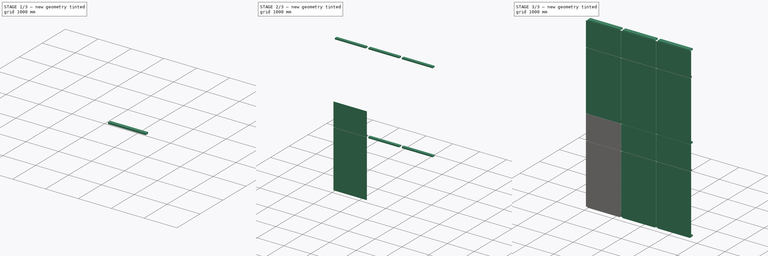
[diagram: build sequence overview — one tinted view per stage of 3, left to right]
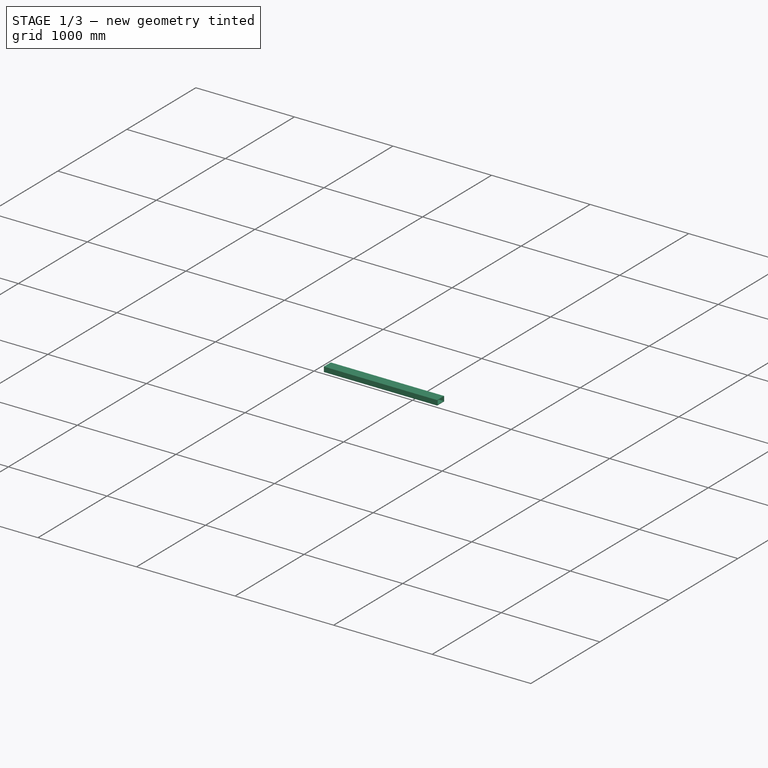
[diagram: stage 1 of 3 — iso view after this stage's code; geometry added in this stage tinted green]
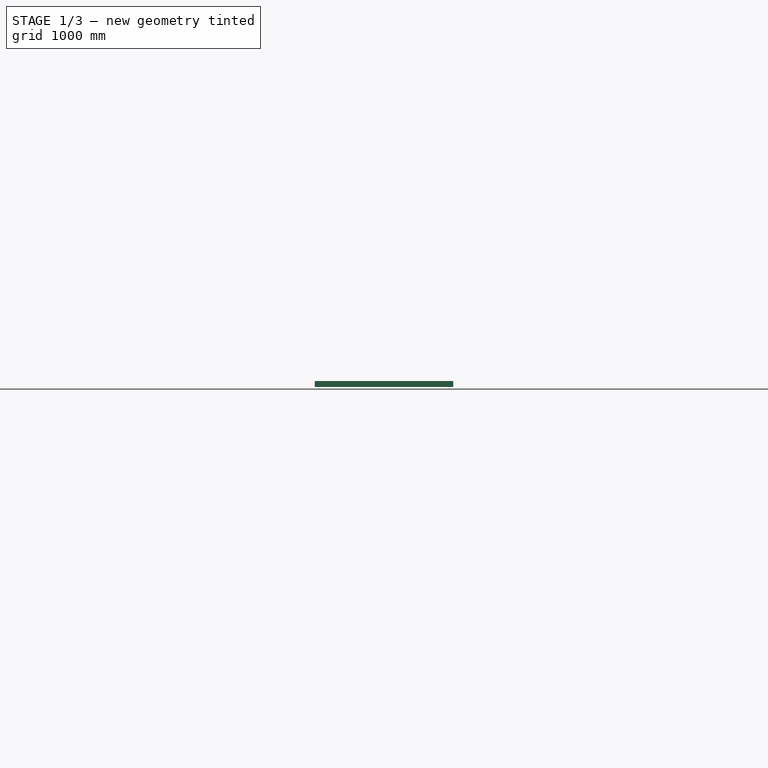
[diagram: stage 1 of 3 — front view after this stage's code; geometry added in this stage tinted green]
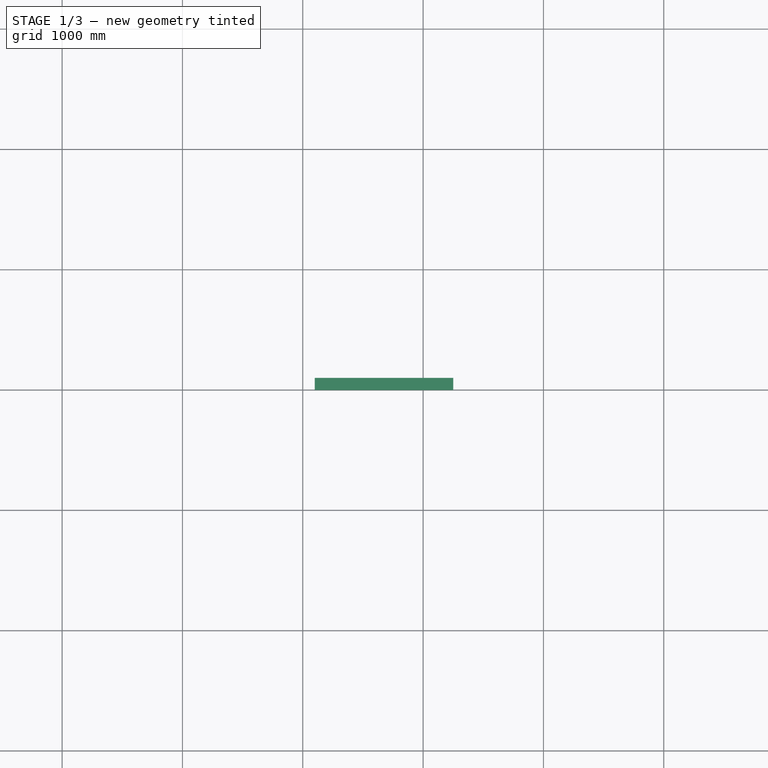
[diagram: stage 1 of 3 — top view after this stage's code; geometry added in this stage tinted green]
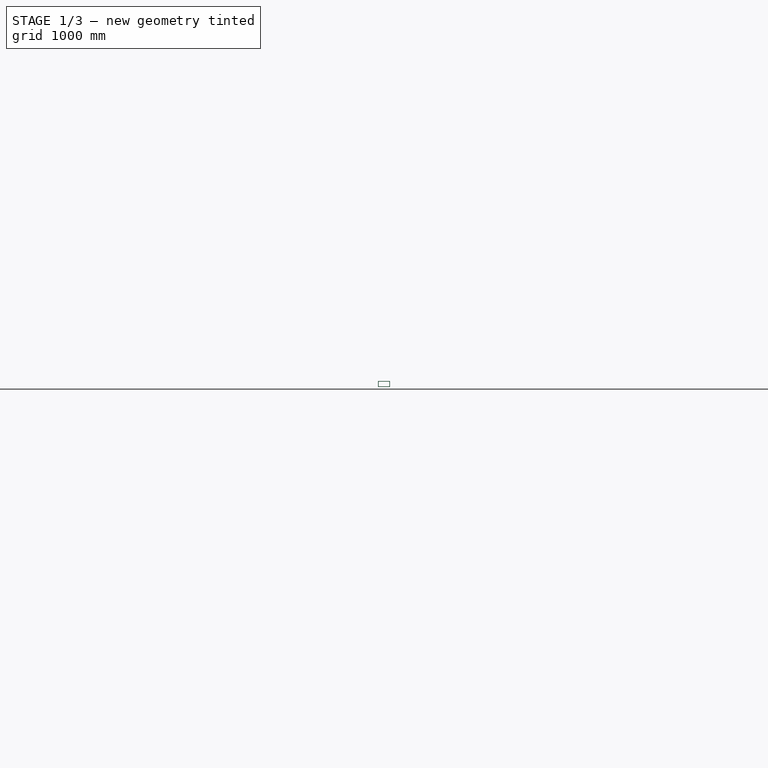
[diagram: stage 1 of 3 — right view after this stage's code; geometry added in this stage tinted green]
FCSTD DOCUMENT  (FreeCAD 0.16R6704 (Git))
Label: Editable_structural_glazing
License: CreativeCommons Attribution
LicenseURL: http://creativecommons.org/licenses/by/4.0/
objects: Sketcher::SketchObject×4, Part::Extrusion×4, Part::FeaturePython×4, Spreadsheet::Sheet×2, App::DocumentObjectGroup×1
note: 12 computed .brp shape members not serialized (recipe doc carries the construction recipe); baked Part::Feature solids carry a one-line shape summary decoded from their .brp

FEATURE [Sketcher::SketchObject] Sketch209  label="Esboço perfis verticais"
  expr: Constraints[34] = Spreadsheet.e_perfis_verticais
  expr: Constraints[33] = Spreadsheet.P_perfis_verticais
  expr: Constraints[32] = Spreadsheet.L_perfis_verticais
  sketch-geometry (12):
    g0: LineSegment StartX=0 StartY=0 StartZ=0 EndX=100 EndY=0 EndZ=0
    g1: LineSegment StartX=100 StartY=0 StartZ=0 EndX=100 EndY=150 EndZ=0
    g2: LineSegment StartX=100 StartY=150 StartZ=0 EndX=0 EndY=150 EndZ=0
    g3: LineSegment StartX=0 StartY=150 StartZ=0 EndX=0 EndY=0 EndZ=0
    g4: LineSegment StartX=5 StartY=145 StartZ=0 EndX=95 EndY=145 EndZ=0
    g5: LineSegment StartX=95 StartY=145 StartZ=0 EndX=95 EndY=5 EndZ=0
    g6: LineSegment StartX=95 StartY=5 StartZ=0 EndX=5 EndY=5 EndZ=0
    g7: LineSegment StartX=5 StartY=5 StartZ=0 EndX=5 EndY=145 EndZ=0
    g8: LineSegment [constr] StartX=0 StartY=66.143 StartZ=0 EndX=5 EndY=66.143 EndZ=0
    g9: LineSegment [constr] StartX=1.57103 StartY=150 StartZ=0 EndX=1.57103 EndY=145 EndZ=0
    g10: LineSegment [constr] StartX=95 StartY=61.8499 StartZ=0 EndX=100 EndY=61.8499 EndZ=0
    g11: LineSegment [constr] StartX=33.117 StartY=5 StartZ=0 EndX=33.117 EndY=0 EndZ=0
  constraints (35):
    c: Coincident(g0,g1)
    c: Coincident(g1,g2)
    c: Coincident(g2,g3)
    c: Coincident(g3,g0)
    c: Horizontal(g0)
    c: Horizontal(g2)
    c: Vertical(g1)
    c: Vertical(g3)
    c: Coincident(g0,g-1)  'Constraint10'
    c: Coincident(g4,g5)
    c: Coincident(g5,g6)
    c: Coincident(g6,g7)
    c: Coincident(g7,g4)
    c: Horizontal(g4)
    c: Horizontal(g6)
    c: Vertical(g5)
    c: Vertical(g7)
    c: PointOnObject(g8,g3)  'Constraint19'
    c: PointOnObject(g8,g7)
    c: PointOnObject(g9,g2)
    c: PointOnObject(g9,g4)
    c: PointOnObject(g10,g5)
    c: PointOnObject(g10,g1)
    c: PointOnObject(g11,g6)
    c: PointOnObject(g11,g0)
    c: Angle(g11) = -1.5708
    c: Angle(g8) = 0
    c: Angle(g9) = -1.5708
    c: Angle(g10) = 0
    c: Equal(g8,g9)
    c: Equal(g9,g10)
    c: Equal(g10,g11)
    c: DistanceX(g-1,g0) = 100
    c: DistanceY(g-1,g2) = 150
    c: DistanceX(g2,g4) = 5
FEATURE [Part::Extrusion] Extrude_Sketch209  label="Perfis verticais "
  Base = -> Sketch209
  Dir = (0,0,6050)
  Solid = true
  expr: Dir.z = Spreadsheet.H_vao * Spreadsheet.n_pavimentos + Spreadsheet.H_perfis_horizontais
FEATURE [Part::FeaturePython] Array  label="Vertical frames"  # Draft array (typed FeaturePython)
  Angle = 360
  ArrayType = 0
  Axis = (1,0,0)
  Base = -> Extrude_Sketch209
  Center = (0,0,0)
  Fuse = false
  IntervalAxis = (0,0,0)
  IntervalX = (1250,0,0)
  IntervalY = (0,1,0)
  IntervalZ = (0,0,0)
  NumberPolar = 1
  NumberX = 4
  NumberY = 1
  NumberZ = 1
  expr: NumberX = Spreadsheet.n_modulos + 1
  expr: IntervalX.x = Spreadsheet.d_entre_eixos
FEATURE [Spreadsheet::Sheet] Spreadsheet  label="Inputs"
  cells = A1=Structural glazing settings:; D1=Alias:; B2=Inputs (mm):; C2=Outputs (do not edit):; A3=General modulation:; A4=1. Frame height (between axles):; B4(H_vao)=3000; D4=Alias: H_vao; A5=2. Iintermediate profile height (axis):; B5(H_perfil_intermediario)=2150; D5=Alias: H_perfil_intermediario; A6=3. Wheelbase of the modules:; B6(d_entre_eixos)=1250; D6=Alias: d_entre_eixos; A7=4. Modules number:; B7(n_modulos)=3; D7=Alias: n_modulos; A8=Result opening width (do not edit):; C8==B6 * B7; A9=5. Number of floors (vertical repetitions):; B9(n_pavimentos)=2; D9=Alias: n_pavimentos; A11=Vertical frames:; A12=Vertical frames width:; B12(L_perfis_verticais)=100; D12=Alias: L_perfis_verticais; A13=Vertical frames depth:; B13(P_perfis_verticais)=150; D13=Alias: P_perfis_verticais; A14=Vertical frames thickness:; B14(e_perfis_verticais)=5; D14=Alias: e_perfis_verticais; A16=Horizontal frames:; A17=Horizontal frames heitht:; B17(H_perfis_horizontais)=50; D17=Alias: H_perfis_horizontais; A18=Horizontal frames depth:; B18(P_perfis_horizontais)=150; D18=Alias: P_perfis_horizontais; A19=Horizontal frames thickness:; B19(e_perfis_horizontais)=5; D19=Atalho: e_perfis_horizontais; A20=Horizontal frames position:; B20(posicionamento_perfis_horizontais)=0; D20=Alias: posicionamento_perfis_horizontais; A22=Secundary horizontal frames:; A23=Secundary horizontal frames: heitht; B23(H_perfis_secundarios)=50; D23=Alias: H_perfis_secundarios; A24=Secundary horizontal frames depth; B24(P_perfis_secundarios)=100; D24=Alias: P_perfis_secundarios; A25=Secundary horizontal frames thickness:; B25(e_perfis_secundarios)=5; D25=Alias: e_perfis_secundarios; A26=Secundary horizontal frames position:; B26(posicionamento_perfis_secundarios)=0; D26=Alias: posicionamento_perfis_secundarios; A28=Glasses:; A29=Glass thickness; B29(e_vidros)=10; D29=Alias: e_vidros; A30=Limits (to frame axes):; B30(limites_vidros)=5; D30=Alias: limites_vidros; A31=Alignment to the external face:; B31(posicionamento_vidros)=0; D31=Alias: posicionamento_vidros
FEATURE [Sketcher::SketchObject] Sketch  label="Esboço perfis secundarios"
  ExternalGeometry = -> [Array]
  Placement = pos=(100,0,0) rot=(0.57735,0.57735,0.57735;2.0944rad)
  Support = -> Array [Face2]
  expr: Constraints[38] = Spreadsheet.e_perfis_secundarios
  expr: Constraints[13] = Spreadsheet.H_perfil_intermediario
  expr: Constraints[11] = Spreadsheet.P_perfis_secundarios
  expr: Constraints[12] = Spreadsheet.H_perfis_secundarios
  sketch-geometry (13):
    g0: LineSegment [constr] StartX=-1134.88 StartY=2150 StartZ=0 EndX=971.493 EndY=2150 EndZ=0
    g1: LineSegment StartX=0 StartY=2175 StartZ=0 EndX=100 EndY=2175 EndZ=0
    g2: LineSegment StartX=100 StartY=2175 StartZ=0 EndX=100 EndY=2125 EndZ=0
    g3: LineSegment StartX=100 StartY=2125 StartZ=0 EndX=0 EndY=2125 EndZ=0
    g4: LineSegment StartX=0 StartY=2125 StartZ=0 EndX=0 EndY=2175 EndZ=0
    g5: LineSegment StartX=5 StartY=2170 StartZ=0 EndX=95 EndY=2170 EndZ=0
    g6: LineSegment StartX=95 StartY=2170 StartZ=0 EndX=95 EndY=2130 EndZ=0
    g7: LineSegment StartX=95 StartY=2130 StartZ=0 EndX=5 EndY=2130 EndZ=0
    g8: LineSegment StartX=5 StartY=2130 StartZ=0 EndX=5 EndY=2170 EndZ=0
    g9: LineSegment [constr] StartX=5 StartY=2130 StartZ=0 EndX=0 EndY=2130 EndZ=0
    g10: LineSegment [constr] StartX=5 StartY=2170 StartZ=0 EndX=5 EndY=2175 EndZ=0
    g11: LineSegment [constr] StartX=95 StartY=2170 StartZ=0 EndX=100 EndY=2170 EndZ=0
    g12: LineSegment [constr] StartX=95 StartY=2130 StartZ=0 EndX=95 EndY=2125 EndZ=0
  constraints (39):
    c: Horizontal(g0)
    c: Coincident(g1,g2)
    c: Coincident(g2,g3)
    c: Coincident(g3,g4)
    c: Coincident(g4,g1)
    c: Horizontal(g1)
    c: Horizontal(g3)
    c: Vertical(g2)
    c: Vertical(g4)
    c: Symmetric(g1,g3,g0)
    c: PointOnObject(g3,g-4)
    c: DistanceX(g1,g1) = 100
    c: DistanceY(g3,g1) = 50
    c: DistanceY(g-1,g0) = 2150
    c: Coincident(g5,g6)
    c: Coincident(g6,g7)
    c: Coincident(g7,g8)
    c: Coincident(g8,g5)
    c: Horizontal(g5)
    c: Horizontal(g7)
    c: Vertical(g6)
    c: Vertical(g8)
    c: PointOnObject(g9,g-4)
    c: Coincident(g10,g5)
    c: PointOnObject(g10,g1)
    c: Coincident(g11,g5)
    c: PointOnObject(g11,g2)
    c: Coincident(g12,g6)
    c: PointOnObject(g12,g3)
    c: Angle(g9) = 3.14159
    c: Angle(g10) = 1.5708
    c: Angle(g11) = 0
    c: Angle(g12) = -1.5708
    c: Equal(g9,g10)
    c: Equal(g10,g11)
    c: Equal(g11,g12)
    c: PointOnObject(g9,g8)
    c: Coincident(g9,g7)
    c: DistanceX(g6,g1) = 5
FEATURE [Part::Extrusion] Extrude_Sketch  label="Perfis secundarios"
  Base = -> Sketch
  Dir = (1150,0,0)
  Solid = true
  expr: Dir.x = Spreadsheet.d_entre_eixos - Spreadsheet.L_perfis_verticais
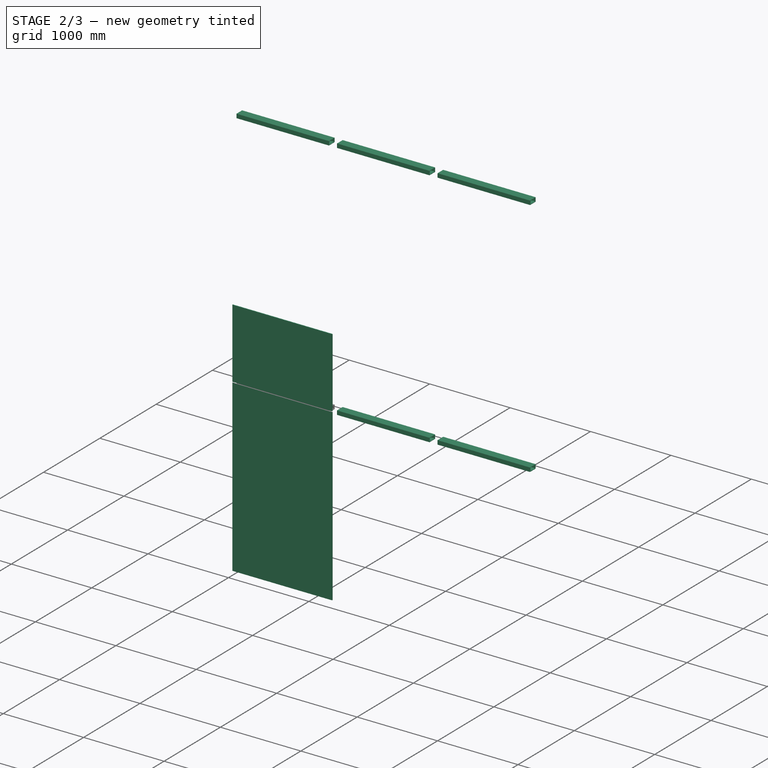
[diagram: stage 2 of 3 — iso view after this stage's code; geometry added in this stage tinted green]
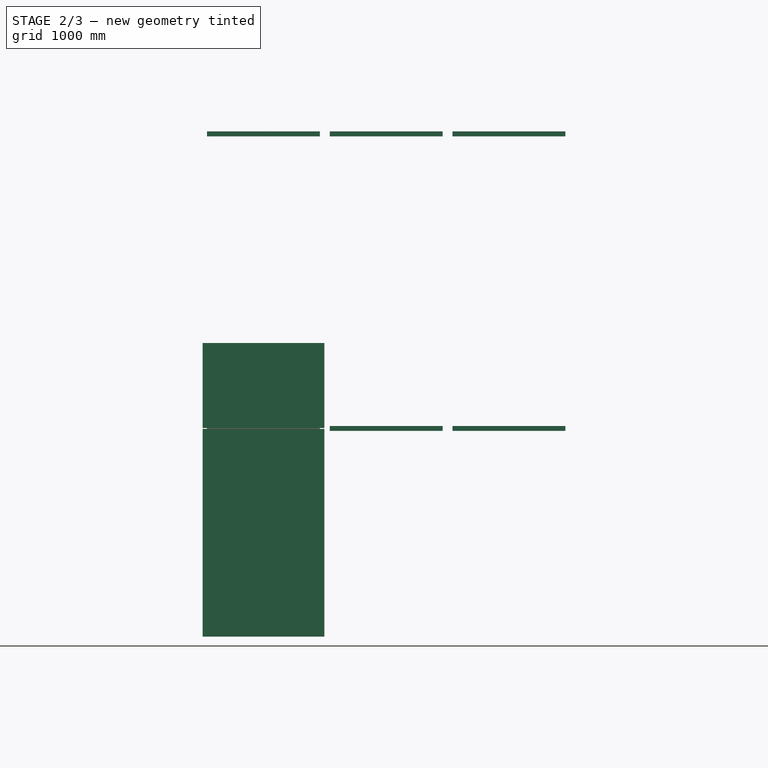
[diagram: stage 2 of 3 — front view after this stage's code; geometry added in this stage tinted green]
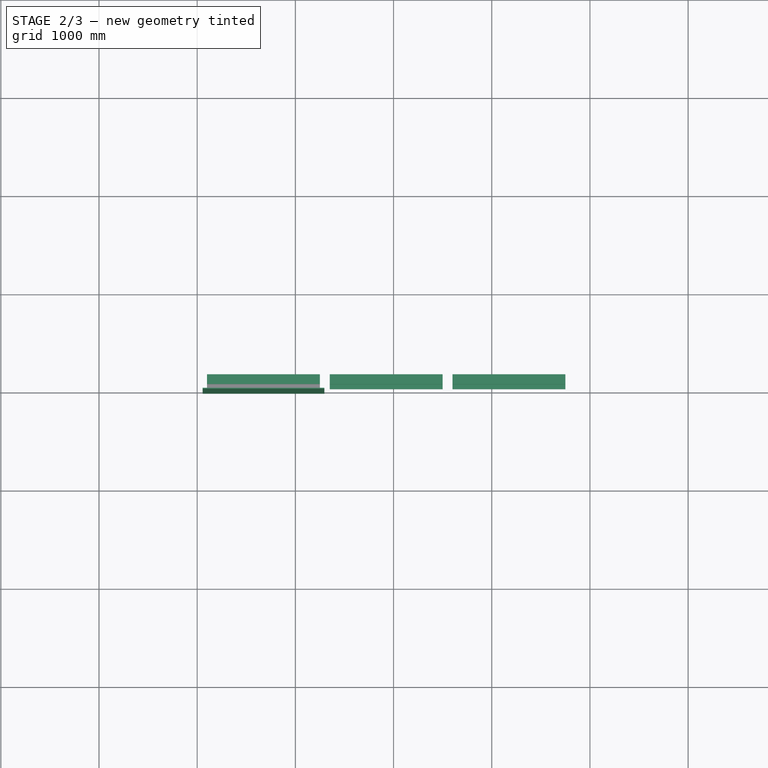
[diagram: stage 2 of 3 — top view after this stage's code; geometry added in this stage tinted green]
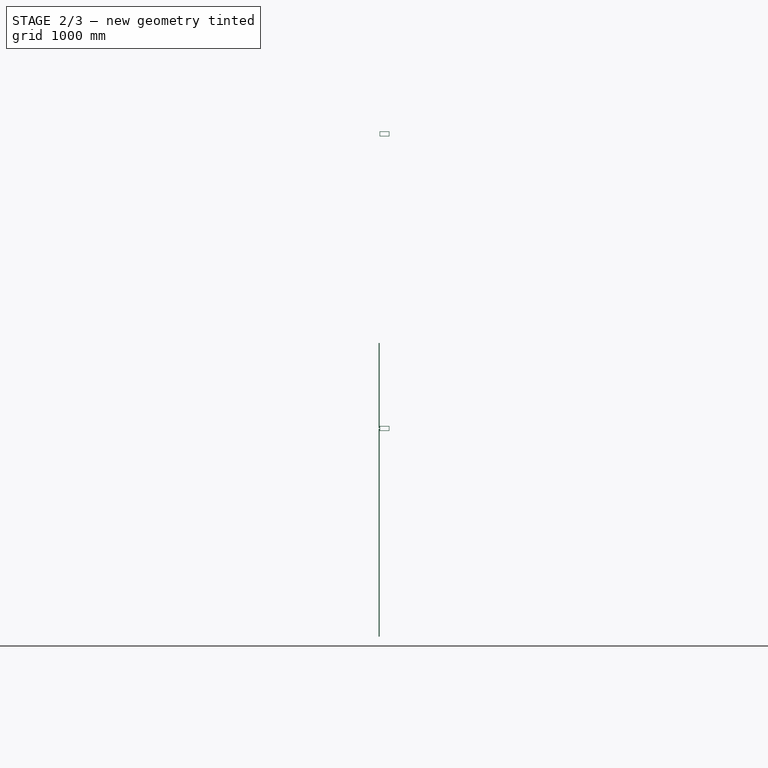
[diagram: stage 2 of 3 — right view after this stage's code; geometry added in this stage tinted green]
FEATURE [Sketcher::SketchObject] Sketch211  label="Esboço vidros"
  ExternalGeometry = -> [Extrude_Sketch209]
  Placement = pos=(0,0,0) rot=(1,0,0;1.5708rad)
  Support = -> Extrude_Sketch209 [Face1]
  expr: Constraints.Distancia_vidros = Spreadsheet.limites_vidros
  expr: Constraints[25] = Spreadsheet.d_entre_eixos
  expr: Constraints[28] = Spreadsheet.H_perfis_horizontais / 2
  expr: Constraints.Constraint32 = Spreadsheet.limites_vidros
  expr: Constraints.Altura_vidros = Spreadsheet.H_vao
  expr: Constraints[29] = Spreadsheet.limites_vidros
  expr: Constraints[20] = Spreadsheet.limites_vidros
  expr: Constraints.Constraint28 = Spreadsheet.limites_vidros
  expr: Constraints.Constraint26 = Spreadsheet.H_perfil_intermediario
  expr: Constraints.Distancia_vidros_02 = Spreadsheet.limites_vidros
  sketch-geometry (13):
    g0: LineSegment StartX=55 StartY=3020 StartZ=0 EndX=1295 EndY=3020 EndZ=0
    g1: LineSegment StartX=1295 StartY=3020 StartZ=0 EndX=1295 EndY=2155 EndZ=0
    g2: LineSegment StartX=1295 StartY=2155 StartZ=0 EndX=55 EndY=2155 EndZ=0
    g3: LineSegment StartX=55 StartY=2155 StartZ=0 EndX=55 EndY=3020 EndZ=0
    g4: LineSegment StartX=55 StartY=2145 StartZ=0 EndX=1295 EndY=2145 EndZ=0
    g5: LineSegment StartX=1295 StartY=2145 StartZ=0 EndX=1295 EndY=30 EndZ=0
    g6: LineSegment StartX=1295 StartY=30 StartZ=0 EndX=55 EndY=30 EndZ=0
    g7: LineSegment StartX=55 StartY=30 StartZ=0 EndX=55 EndY=2145 EndZ=0
    g8: LineSegment [constr] StartX=50 StartY=3205.53 StartZ=0 EndX=50 EndY=-776.153 EndZ=0
    g9: LineSegment [constr] StartX=-1184.11 StartY=2150 StartZ=0 EndX=8140.16 EndY=2150 EndZ=0
    g10: LineSegment [constr] StartX=1300 StartY=3244 StartZ=0 EndX=1300 EndY=-528.743 EndZ=0
    g11: LineSegment [constr] StartX=-1031.45 StartY=3025 StartZ=0 EndX=2636.03 EndY=3025 EndZ=0
    g12: LineSegment [constr] StartX=-1137.88 StartY=25 StartZ=0 EndX=1656 EndY=25 EndZ=0
  constraints (34):
    c: Coincident(g0,g1)
    c: Coincident(g1,g2)
    c: Coincident(g2,g3)
    c: Coincident(g3,g0)
    c: Horizontal(g0)
    c: Horizontal(g2)
    c: Vertical(g1)
    c: Vertical(g3)
    c: Coincident(g4,g5)
    c: Coincident(g5,g6)
    c: Coincident(g6,g7)
    c: Coincident(g7,g4)
    c: Horizontal(g4)
    c: Horizontal(g6)
    c: Vertical(g5)
    c: Vertical(g7)
    c: DistanceX(g4,g2) = 0
    c: DistanceX(g1,g4) = 0
    c: Vertical(g8)
    c: Symmetric(g-5,g-5,g8)
    c: DistanceX(g8,g0) = 5
    c: Horizontal(g9)
    c: Vertical(g10)  'Constraint27'
    c: DistanceX(g0,g10) = 5  'Constraint28'
    c: DistanceY(g9) = 2150  'Constraint26'
    c: DistanceX(g8,g10) = 1250
    c: Horizontal(g11)
    c: Horizontal(g12)
    c: DistanceY(g-1,g12) = 25
    c: DistanceY(g12,g6) = 5
    c: DistanceY(g12,g11) = 3000  'Altura_vidros'
    c: DistanceY(g0,g11) = 5  'Constraint32'
    c: DistanceY(g9,g2) = 5  'Distancia_vidros'
    c: DistanceY(g4,g9) = 5  'Distancia_vidros_02'
FEATURE [Part::Extrusion] Extrude_Sketch211  label="Vidros "
  Base = -> Sketch211
  Dir = (0,-10,0)
  Solid = true
  expr: Dir.y = -Spreadsheet.e_vidros
FEATURE [Part::FeaturePython] Array003  label="Secundary frames"  # Draft array (typed FeaturePython)
  Angle = 360
  ArrayType = 0
  Axis = (0,0,1)
  Base = -> Extrude_Sketch
  Center = (0,0,0)
  Fuse = false
  IntervalAxis = (0,0,0)
  IntervalX = (1250,0,0)
  IntervalY = (0,1,0)
  IntervalZ = (0,0,3000)
  NumberPolar = 1
  NumberX = 3
  NumberY = 1
  NumberZ = 2
  expr: Placement.Base.y = Spreadsheet.posicionamento_perfis_secundarios
  expr: NumberZ = Spreadsheet.n_pavimentos
  expr: IntervalZ.z = Spreadsheet.H_vao
  expr: NumberX = Spreadsheet.n_modulos
  expr: IntervalX.x = Spreadsheet.d_entre_eixos
FEATURE [Spreadsheet::Sheet] Spreadsheet001  label="Outputs"
  cells = A1=Structural Glazing outputs:; A3=Components; B3=Length (m); C3=Area (m2); D3=Volume (m3); E3=Unit values ($); F3=Subtotal ($); G3=Total ($); A4=1. Glass:; C4==Array002.Shape.Volume / Spreadsheet.e_vidros / 1000000; D4==Array002.Shape.Volume / 1000000000; E4=1000; F4==C4 * E4; A5=2. Vertical frames:; B5==(Spreadsheet.H_vao * Spreadsheet.n_pavimentos * (Spreadsheet.n_modulos + 1) + Spreadsheet.H_perfis_horizontais * Spreadsheet.n_modulos) / 1000; D5==Array.Shape.Volume / 1000000000; E5=500; F5==B5 * E5; A6=3. Horizontal frames:; B6==(Spreadsheet.d_entre_eixos - Spreadsheet.L_perfis_verticais) * Spreadsheet.n_modulos * (Spreadsheet.n_pavimentos + 1) / 1000; D6==Array001.Shape.Volume / 1000000000; E6=400; F6==B6 * E6; A7=4. Secundary horizontal frames:; B7==(Spreadsheet.d_entre_eixos - Spreadsheet.L_perfis_verticais) * Spreadsheet.n_modulos * Spreadsheet.n_pavimentos / 1000; D7==Array003.Shape.Volume / 1000000000; E7=300; F7==B7 * E7; G8==F4 + F5 - F6 + F7
FEATURE [App::DocumentObjectGroup] Grupo129  label="Structural glazing"
  Group = -> [Array,Array001,Array002,Extrude_Sketch209,Extrude_Sketch210,Extrude_Sketch211,Spreadsheet,Sketch,Array003,Spreadsheet001]
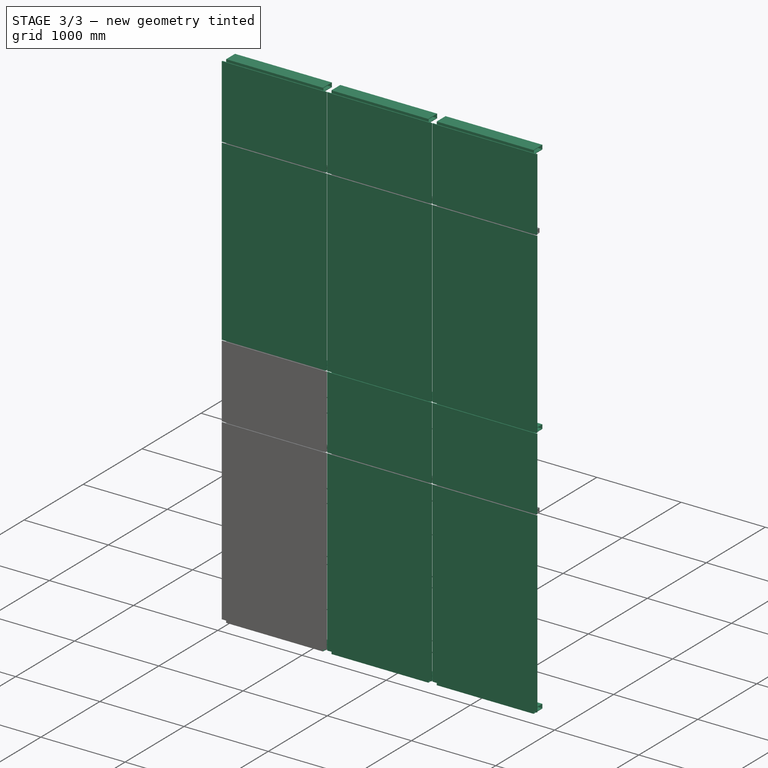
[diagram: stage 3 of 3 — iso view after this stage's code; geometry added in this stage tinted green]
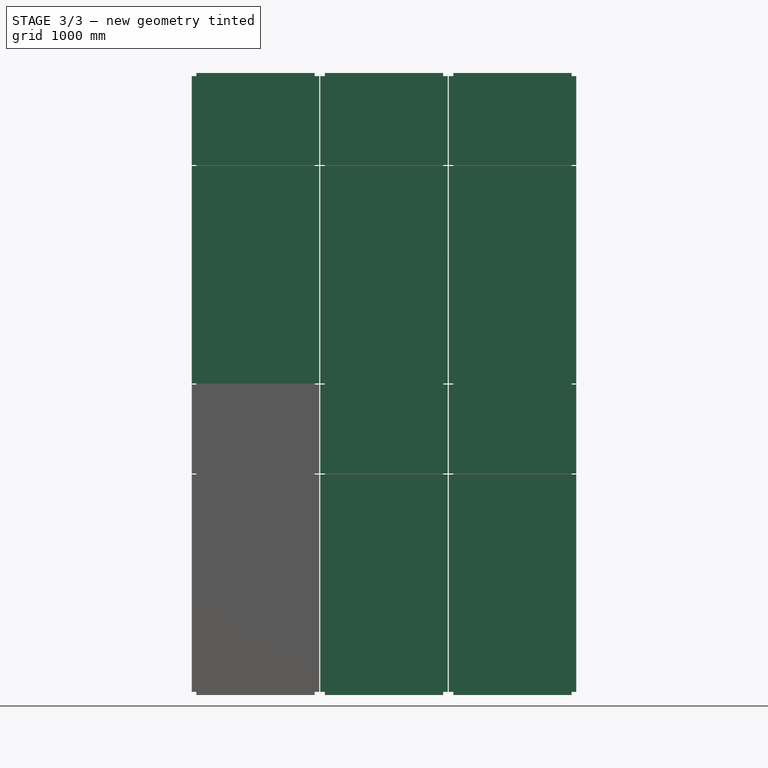
[diagram: stage 3 of 3 — front view after this stage's code; geometry added in this stage tinted green]
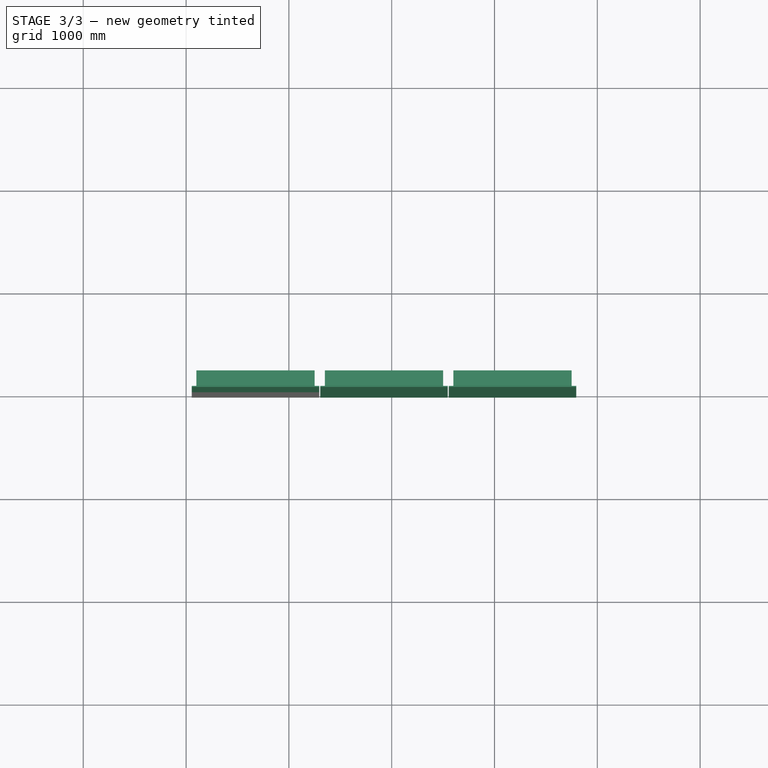
[diagram: stage 3 of 3 — top view after this stage's code; geometry added in this stage tinted green]
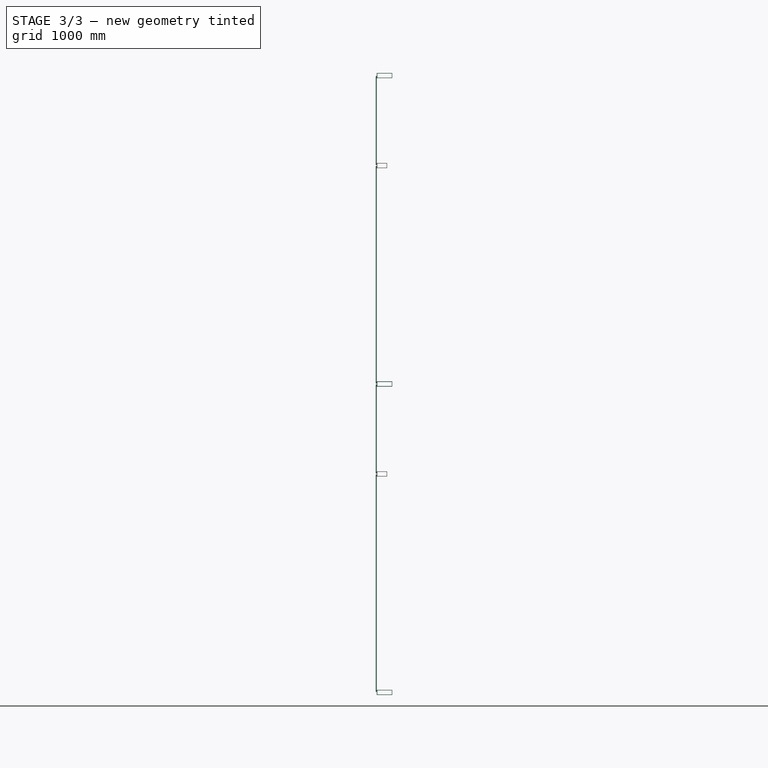
[diagram: stage 3 of 3 — right view after this stage's code; geometry added in this stage tinted green]
FEATURE [Sketcher::SketchObject] Sketch210  label="Esboço perfis horizontais principais"
  ExternalGeometry = -> [Extrude_Sketch209]
  Placement = pos=(100,0,0) rot=(0.57735,0.57735,0.57735;2.0944rad)
  Support = -> Extrude_Sketch209 [Face2]
  expr: Constraints[28] = Spreadsheet.e_perfis_horizontais
  expr: Constraints[33] = Spreadsheet.H_perfis_horizontais
  expr: Constraints[32] = Spreadsheet.P_perfis_horizontais
  sketch-geometry (12):
    g0: LineSegment StartX=0 StartY=50 StartZ=0 EndX=150 EndY=50 EndZ=0
    g1: LineSegment StartX=150 StartY=50 StartZ=0 EndX=150 EndY=0 EndZ=0
    g2: LineSegment StartX=150 StartY=0 StartZ=0 EndX=0 EndY=0 EndZ=0
    g3: LineSegment StartX=0 StartY=0 StartZ=0 EndX=0 EndY=50 EndZ=0
    g4: LineSegment StartX=5 StartY=45 StartZ=0 EndX=145 EndY=45 EndZ=0
    g5: LineSegment StartX=145 StartY=45 StartZ=0 EndX=145 EndY=5 EndZ=0
    g6: LineSegment StartX=145 StartY=5 StartZ=0 EndX=5 EndY=5 EndZ=0
    g7: LineSegment StartX=5 StartY=5 StartZ=0 EndX=5 EndY=45 EndZ=0
    g8: LineSegment [constr] StartX=5 StartY=45 StartZ=0 EndX=5 EndY=50 EndZ=0
    g9: LineSegment [constr] StartX=145 StartY=45 StartZ=0 EndX=150 EndY=45 EndZ=0
    g10: LineSegment [constr] StartX=145 StartY=5 StartZ=0 EndX=145 EndY=0 EndZ=0
    g11: LineSegment [constr] StartX=5 StartY=5 StartZ=0 EndX=0 EndY=5 EndZ=0
  constraints (36):
    c: Coincident(g0,g1)
    c: Coincident(g1,g2)
    c: Coincident(g2,g3)
    c: Coincident(g3,g0)
    c: Horizontal(g0)
    c: Horizontal(g2)
    c: Vertical(g1)
    c: Vertical(g3)
    c: Coincident(g4,g5)
    c: Coincident(g5,g6)
    c: Coincident(g6,g7)
    c: Coincident(g7,g4)
    c: Horizontal(g4)
    c: Horizontal(g6)
    c: Vertical(g5)
    c: Vertical(g7)
    c: Coincident(g8,g4)
    c: PointOnObject(g8,g0)
    c: Coincident(g9,g4)
    c: PointOnObject(g9,g1)
    c: Coincident(g10,g5)
    c: PointOnObject(g10,g2)
    c: Coincident(g11,g6)
    c: PointOnObject(g11,g3)
    c: Angle(g11) = 3.14159
    c: Angle(g8) = 1.5708
    c: Angle(g9) = 0
    c: Angle(g10) = -1.5708
    c: DistanceX(g4,g0) = 5
    c: Equal(g8,g9)
    c: Equal(g9,g10)
    c: Equal(g10,g11)
    c: DistanceX(g0,g0) = 150
    c: DistanceY(g1,g0) = 50
    c: DistanceX(g2,g-1) = 0  'Alinhamento frontal com perfis verticais'
    c: DistanceY(g-1,g2) = 0  'Alinhamento dos perfis horizontais com base'
FEATURE [Part::Extrusion] Extrude_Sketch210  label="Perfis horizontais principais"
  Base = -> Sketch210
  Dir = (1150,0,0)
  Solid = true
  expr: Dir.x = Spreadsheet.d_entre_eixos - Spreadsheet.L_perfis_verticais
FEATURE [Part::FeaturePython] Array001  label="Horizontal frames"  # Draft array (typed FeaturePython)
  Angle = 360
  ArrayType = 0
  Axis = (0,0,1)
  Base = -> Extrude_Sketch210
  Center = (0,0,0)
  Fuse = false
  IntervalAxis = (0,0,0)
  IntervalX = (1250,0,0)
  IntervalY = (0,0,0)
  IntervalZ = (0,0,3000)
  NumberPolar = 1
  NumberX = 3
  NumberY = 1
  NumberZ = 3
  expr: Placement.Base.y = Spreadsheet.posicionamento_perfis_horizontais
  expr: NumberZ = Spreadsheet.n_pavimentos + 1
  expr: IntervalZ.z = Spreadsheet.H_vao
  expr: NumberX = Spreadsheet.n_modulos
  expr: IntervalX.x = Spreadsheet.d_entre_eixos
FEATURE [Part::FeaturePython] Array002  label="Glasses"  # Draft array (typed FeaturePython)
  Angle = 360
  ArrayType = 0
  Axis = (0,0,1)
  Base = -> Extrude_Sketch211
  Center = (0,0,0)
  Fuse = false
  IntervalAxis = (0,0,0)
  IntervalX = (1250,0,0)
  IntervalY = (0,1,0)
  IntervalZ = (0,0,3000)
  NumberPolar = 1
  NumberX = 3
  NumberY = 1
  NumberZ = 2
  expr: Placement.Base.y = Spreadsheet.posicionamento_vidros
  expr: NumberZ = Spreadsheet.n_pavimentos
  expr: IntervalZ.z = Spreadsheet.H_vao
  expr: IntervalX.x = Spreadsheet.d_entre_eixos
  expr: NumberX = Spreadsheet.n_modulos
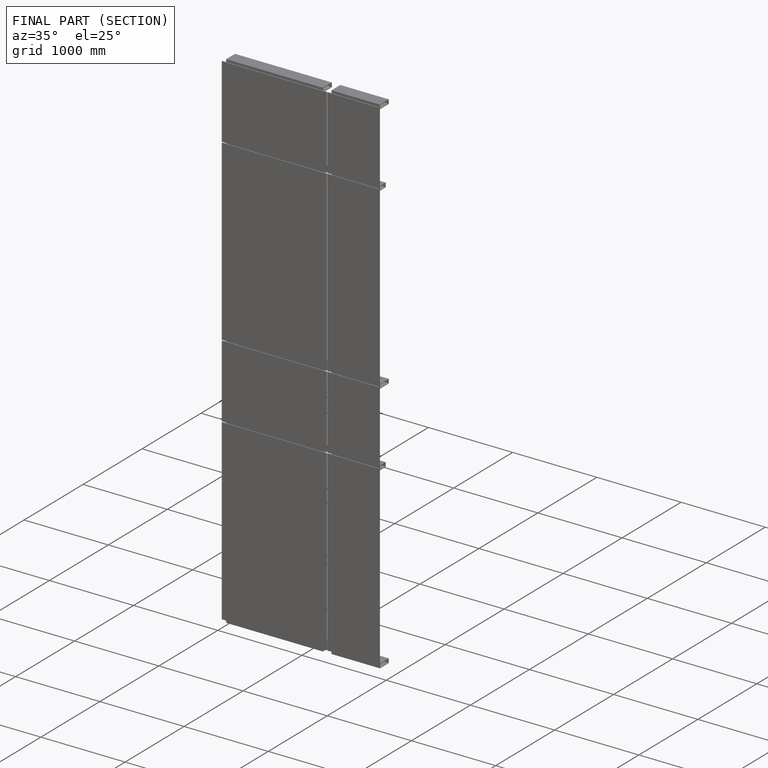
[diagram: finished part — half-section view (interior)]
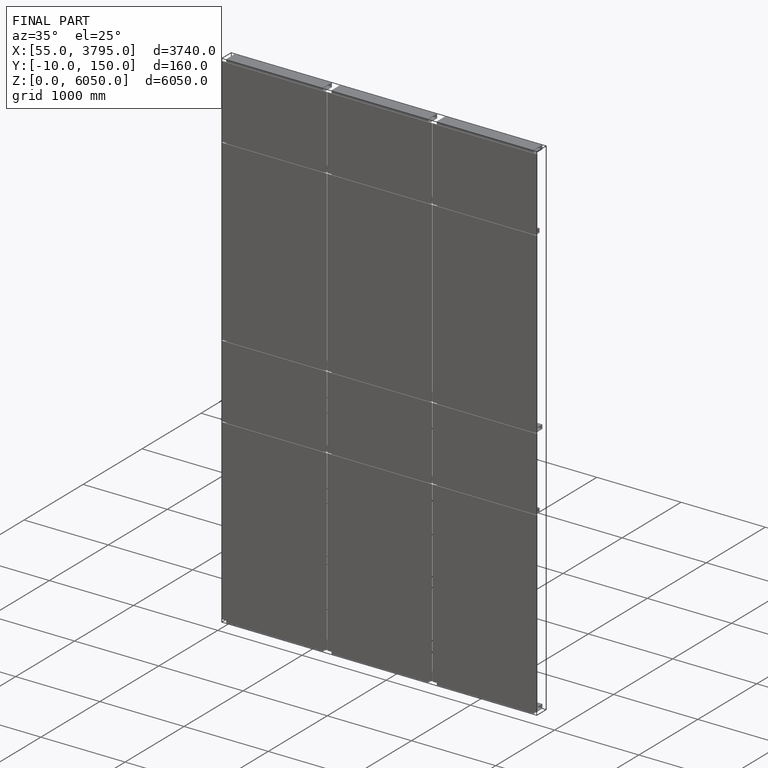
[diagram: finished part — iso view with bounding-box wireframe]
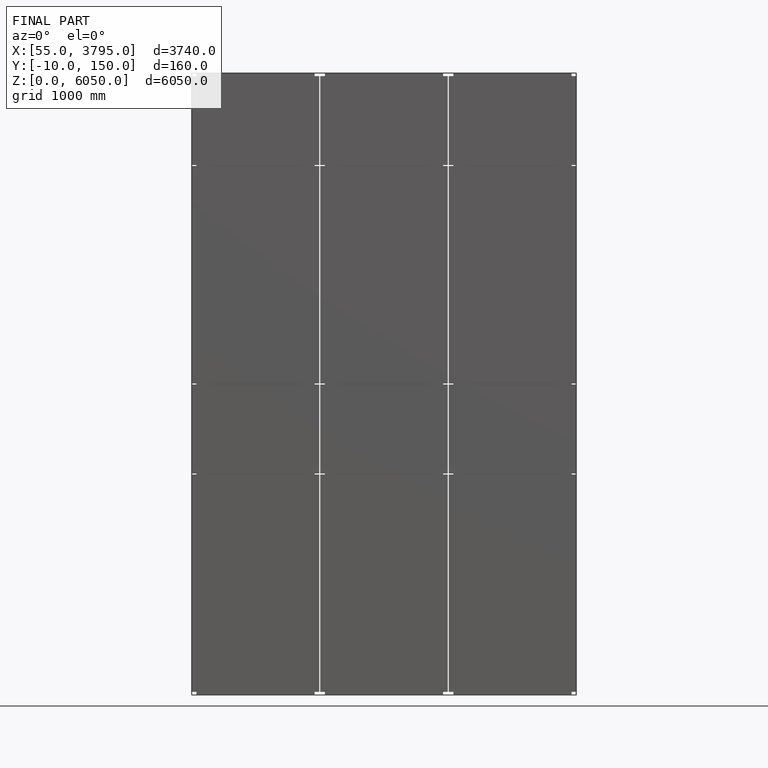
[diagram: finished part — front view with bounding-box wireframe]
